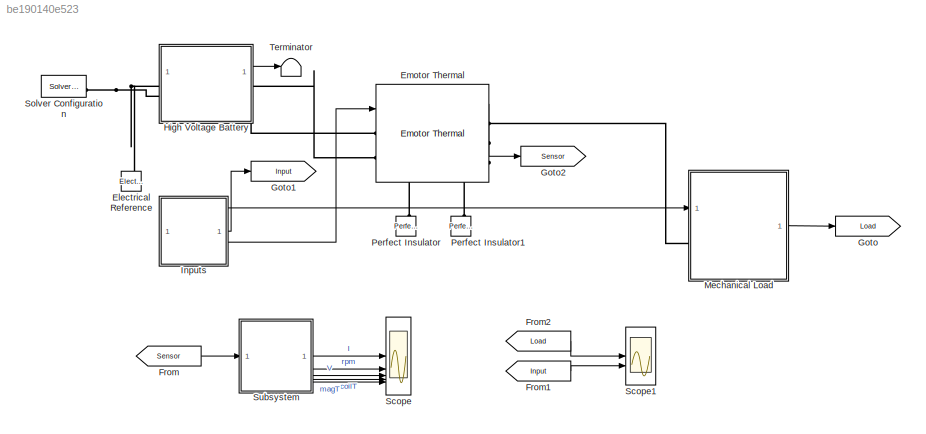
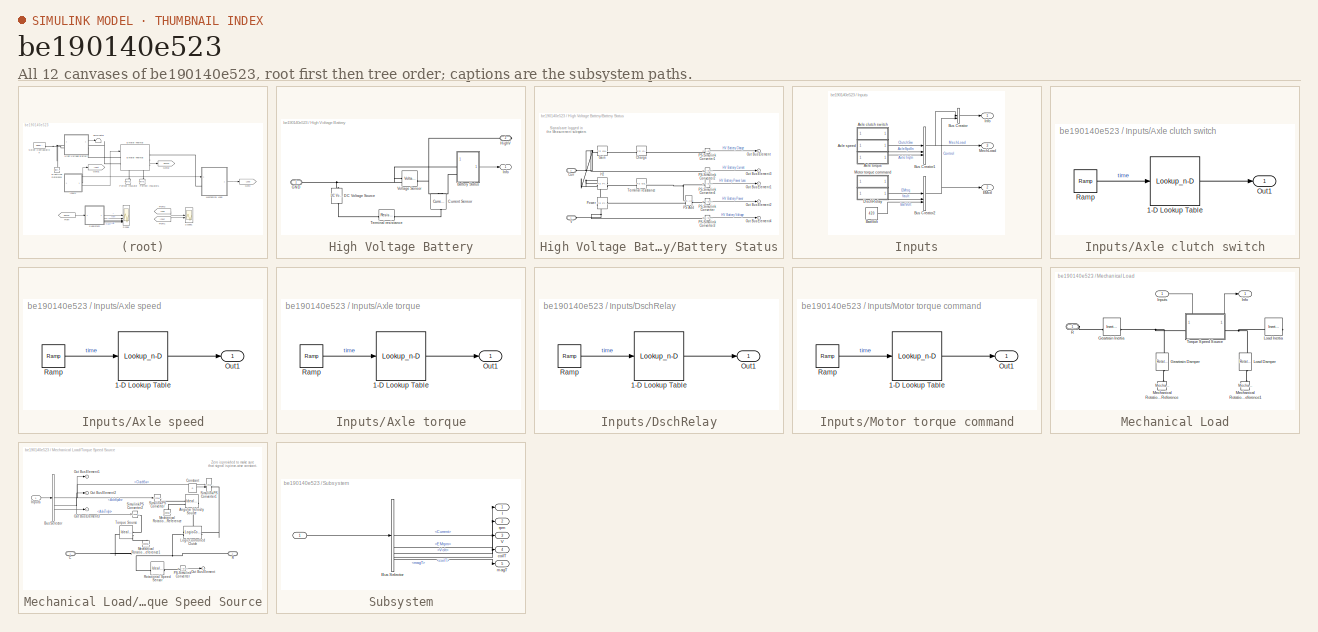
[diagram: thumbnail index - all 12 canvases of the model, root first then tree order]
MODEL slx_be190140e523
KIND model
CONFIG AbsTol = auto
CONFIG EnableMultiTasking = off
CONFIG FixedStep = auto
CONFIG MaxStep = auto
CONFIG MinStep = auto
CONFIG PreLoadFcn = MotorTestHarnessParams;
CONFIG RelTol = 1e-3
CONFIG SampleTimeConstraint = Unconstrained
CONFIG SolverName = VariableStepAuto
CONFIG StartTime = 0.0
CONFIG StopTime = 300
BLOCK [Reference] Electrical Reference  REF=fl_lib/Electrical/Electrical Elements/Electrical Reference
  NameLocation = left
  SourceBlock = fl_lib/Electrical/Electrical Elements/Electrical Reference
  SourceType = Electrical Reference
BLOCK [Reference] Emotor Thermal  REF=EmotorLib/Emotor Thermal
  NameLocation = top
  SourceBlock = EmotorLib/Emotor Thermal
BLOCK [From] From
  GotoTag = Sensor
BLOCK [From] From1
  GotoTag = Input
BLOCK [From] From2
  GotoTag = Load
BLOCK [Goto] Goto
  GotoTag = Load
BLOCK [Goto] Goto1
  GotoTag = Input
BLOCK [Goto] Goto2
  GotoTag = Sensor
BLOCK [SubSystem] High Voltage Battery
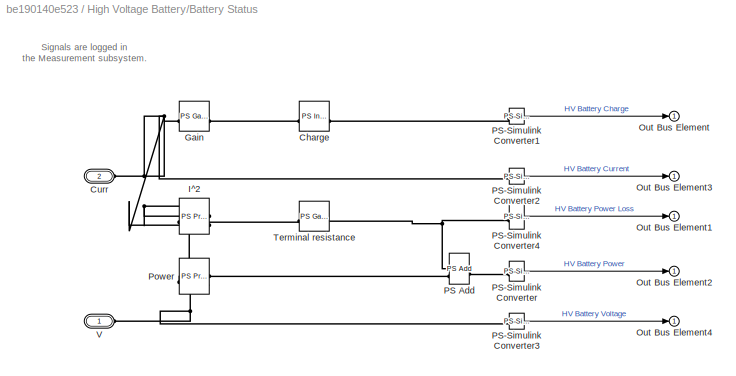
BLOCK [SubSystem] High Voltage Battery/Battery Status
BLOCK [Reference] High Voltage Battery/Battery Status/Charge  REF=fl_lib/Physical Signals/Linear Operators/PS Integrator
  AttributesFormatString = %<x0> [%<x0_unit>]
  SourceBlock = fl_lib/Physical Signals/Linear Operators/PS Integrator
  SourceType = PS Integrator
BLOCK [PMIOPort] High Voltage Battery/Battery Status/Curr
  Port = 2
  Side = Left
BLOCK [Reference] High Voltage Battery/Battery Status/Gain  REF=fl_lib/Physical Signals/Functions/PS Gain
  AttributesFormatString = %<gain>
  SourceBlock = fl_lib/Physical Signals/Functions/PS Gain
  SourceType = PS Gain
BLOCK [Reference] High Voltage Battery/Battery Status/I^2  REF=fl_lib/Physical Signals/Functions/PS Product
  SourceBlock = fl_lib/Physical Signals/Functions/PS Product
  SourceType = PS Product
BLOCK [Outport] High Voltage Battery/Battery Status/Out Bus Element
  AttributesFormatString = %<Unit>
BLOCK [Outport] High Voltage Battery/Battery Status/Out Bus Element1
  AttributesFormatString = %<Unit>
BLOCK [Outport] High Voltage Battery/Battery Status/Out Bus Element2
  AttributesFormatString = %<Unit>
BLOCK [Outport] High Voltage Battery/Battery Status/Out Bus Element3
  AttributesFormatString = %<Unit>
BLOCK [Outport] High Voltage Battery/Battery Status/Out Bus Element4
  AttributesFormatString = %<Unit>
BLOCK [Reference] High Voltage Battery/Battery Status/PS Add  REF=fl_lib/Physical Signals/Functions/PS Add
  SourceBlock = fl_lib/Physical Signals/Functions/PS Add
  SourceType = PS Add
BLOCK [Reference] High Voltage Battery/Battery Status/PS-Simulink Converter  REF=nesl_utility/PS-Simulink
Converter
  AttributesFormatString = %<Unit>
  SourceBlock = nesl_utility/PS-Simulink\nConverter
  SourceType = PS-Simulink\nConverter
BLOCK [Reference] High Voltage Battery/Battery Status/PS-Simulink Converter1  REF=nesl_utility/PS-Simulink
Converter
  AttributesFormatString = %<Unit>
  SourceBlock = nesl_utility/PS-Simulink\nConverter
  SourceType = PS-Simulink\nConverter
BLOCK [Reference] High Voltage Battery/Battery Status/PS-Simulink Converter2  REF=nesl_utility/PS-Simulink
Converter
  AttributesFormatString = %<Unit>
  SourceBlock = nesl_utility/PS-Simulink\nConverter
  SourceType = PS-Simulink\nConverter
BLOCK [Reference] High Voltage Battery/Battery Status/PS-Simulink Converter3  REF=nesl_utility/PS-Simulink
Converter
  AttributesFormatString = %<Unit>
  SourceBlock = nesl_utility/PS-Simulink\nConverter
  SourceType = PS-Simulink\nConverter
BLOCK [Reference] High Voltage Battery/Battery Status/PS-Simulink Converter4  REF=nesl_utility/PS-Simulink
Converter
  AttributesFormatString = %<Unit>
  SourceBlock = nesl_utility/PS-Simulink\nConverter
  SourceType = PS-Simulink\nConverter
BLOCK [Reference] High Voltage Battery/Battery Status/Power  REF=fl_lib/Physical Signals/Functions/PS Product
  SourceBlock = fl_lib/Physical Signals/Functions/PS Product
  SourceType = PS Product
BLOCK [Reference] High Voltage Battery/Battery Status/Terminal resistance  REF=fl_lib/Physical Signals/Functions/PS Gain
  AttributesFormatString = %<gain> [%<gain_unit>]
  SourceBlock = fl_lib/Physical Signals/Functions/PS Gain
  SourceType = PS Gain
BLOCK [PMIOPort] High Voltage Battery/Battery Status/V
  Side = Left
BLOCK [Reference] High Voltage Battery/Current Sensor  REF=fl_lib/Electrical/Electrical Sensors/Current Sensor
  NameLocation = right
  SourceBlock = fl_lib/Electrical/Electrical Sensors/Current Sensor
  SourceType = Current Sensor
BLOCK [Reference] High Voltage Battery/DC Voltage Source  REF=fl_lib/Electrical/Electrical Sources/DC Voltage Source
  AttributesFormatString = %<v0> [%<v0_unit>]
  NameLocation = left
  SourceBlock = fl_lib/Electrical/Electrical Sources/DC Voltage Source
  SourceType = DC Voltage Source
BLOCK [PMIOPort] High Voltage Battery/GND
  Side = Left
BLOCK [PMIOPort] High Voltage Battery/HighV
  Port = 2
  Side = Right
BLOCK [Outport] High Voltage Battery/Info
BLOCK [Reference] High Voltage Battery/Terminal resistance  REF=fl_lib/Electrical/Electrical Elements/Resistor
  AttributesFormatString = %<R> [%<R_unit>]
  NameLocation = top
  SourceBlock = fl_lib/Electrical/Electrical Elements/Resistor
  SourceType = Resistor
BLOCK [Reference] High Voltage Battery/Voltage Sensor  REF=fl_lib/Electrical/Electrical Sensors/Voltage Sensor
  NameLocation = top
  SourceBlock = fl_lib/Electrical/Electrical Sensors/Voltage Sensor
  SourceType = Voltage Sensor
BLOCK [SubSystem] Inputs
BLOCK [SubSystem] Inputs/Axle clutch switch
  NameLocation = left
BLOCK [Lookup_n-D] Inputs/Axle clutch switch/1-D Lookup Table
  BreakpointsForDimension1 = [0  1]
  InputPortMap = u0
  InternalRulePriority = Speed
  InterpMethod = Flat
  NumberOfTableDimensions = 1
  RndMeth = Simplest
  Table = [0  0]
BLOCK [Outport] Inputs/Axle clutch switch/Out1
BLOCK [Reference] Inputs/Axle clutch switch/Ramp  REF=simulink/Sources/Ramp
  AttributesFormatString = Slope: %<slope>\nStart time: %<start>\nInitial output: %<InitialOutput>
  SourceBlock = simulink/Sources/Ramp
  SourceType = Ramp
BLOCK [SubSystem] Inputs/Axle speed
  NameLocation = left
BLOCK [Lookup_n-D] Inputs/Axle speed/1-D Lookup Table
  BreakpointsForDimension1 = [0  1]
  InputPortMap = u0
  InternalRulePriority = Speed
  NumberOfTableDimensions = 1
  RndMeth = Simplest
  Table = [0  0]
BLOCK [Outport] Inputs/Axle speed/Out1
BLOCK [Reference] Inputs/Axle speed/Ramp  REF=simulink/Sources/Ramp
  AttributesFormatString = Slope: %<slope>\nStart time: %<start>\nInitial output: %<InitialOutput>
  SourceBlock = simulink/Sources/Ramp
  SourceType = Ramp
BLOCK [SubSystem] Inputs/Axle torque
  NameLocation = left
BLOCK [Lookup_n-D] Inputs/Axle torque/1-D Lookup Table
  BreakpointsForDimension1 = [0            20          20.1          20.2          20.3          20.4          20.5          20.6          20.7          20.8          20.9            21           300]
  InputPortMap = u0
  InternalRulePriority = Speed
  NumberOfTableDimensions = 1
  RndMeth = Simplest
  Table = [0            0        -0.28        -1.04        -2.16        -3.52           -5        -6.48        -7.84        -8.96        -9.72          -10          -10]
BLOCK [Outport] Inputs/Axle torque/Out1
BLOCK [Reference] Inputs/Axle torque/Ramp  REF=simulink/Sources/Ramp
  AttributesFormatString = Slope: %<slope>\nStart time: %<start>\nInitial output: %<InitialOutput>
  SourceBlock = simulink/Sources/Ramp
  SourceType = Ramp
BLOCK [Constant] Inputs/BattVolt
  Value = 420
BLOCK [BusCreator] Inputs/Bus Creator
  DisplayOption = bar
  InheritFromInputs = on
  Inputs = 2
BLOCK [BusCreator] Inputs/Bus Creator1
  DisplayOption = bar
  InheritFromInputs = on
  Inputs = 3
BLOCK [BusCreator] Inputs/Bus Creator2
  DisplayOption = bar
  InheritFromInputs = on
  Inputs = 3
BLOCK [SubSystem] Inputs/DschRelay
  NameLocation = left
BLOCK [Lookup_n-D] Inputs/DschRelay/1-D Lookup Table
  BreakpointsForDimension1 = [0   50   51   52   53   54   55   56   57   58   59   60  200  201  202  203  204  205  206  207  208  209  210  211  212  213  214  215  216  217  218  219  220  221  222  223  224  225  226  227  228  229  230  231  232  233  234  235  236  237  238  239  240  241  242  243  244  245  246  247  248  249  250  300]
  InputPortMap = u0
  InternalRulePriority = Speed
  NumberOfTableDimensions = 1
  RndMeth = Simplest
  Table = [0               0             -56            -208            -432            -704           -1000           -1296           -1568           -1792           -1944           -2000           -2000        -2011.84        -2046.72        -2103.68        -2181.76           -2280        -2397.44        -2533.12        -2686.08        -2855.36           -3040        -3239.04        -3451.52        -3676....<+611ch>
BLOCK [Outport] Inputs/DschRelay/Out1
BLOCK [Reference] Inputs/DschRelay/Ramp  REF=simulink/Sources/Ramp
  AttributesFormatString = Slope: %<slope>\nStart time: %<start>\nInitial output: %<InitialOutput>
  SourceBlock = simulink/Sources/Ramp
  SourceType = Ramp
BLOCK [Outport] Inputs/EMctl
  Port = 2
BLOCK [Outport] Inputs/Info
BLOCK [Outport] Inputs/MechLoad
  Port = 3
BLOCK [SubSystem] Inputs/Motor torque command
  NameLocation = left
BLOCK [Lookup_n-D] Inputs/Motor torque command/1-D Lookup Table
  BreakpointsForDimension1 = [0            20          20.5            21          21.5            22          22.5            23          23.5            24          24.5            25          25.5            26          26.5            27          27.5            28          28.5            29          29.5            30          30.5            31          31.5            32          32.5            33          33.5      ...<+1059ch>
  InputPortMap = u0
  InternalRulePriority = Speed
  NumberOfTableDimensions = 1
  RndMeth = Simplest
  Table = [0             0     0.1394531      0.553125      1.233984         2.175      3.369141      4.809375      6.488672           8.4      10.53633      12.89062      15.45586        18.225      21.19102      24.34687      27.68555          31.2       34.8832      38.72813      42.72773        46.875      51.16289      55.58438      60.13242          64.8      69.58008      74.46563      79.44961      ...<+1059ch>
BLOCK [Outport] Inputs/Motor torque command/Out1
BLOCK [Reference] Inputs/Motor torque command/Ramp  REF=simulink/Sources/Ramp
  AttributesFormatString = Slope: %<slope>\nStart time: %<start>\nInitial output: %<InitialOutput>
  SourceBlock = simulink/Sources/Ramp
  SourceType = Ramp
BLOCK [SubSystem] Mechanical Load
  PortSchema = {"entries":[{"content":{"sides":[{"content":{"connectorIds":["LConn1","In1"]},"type":"ConnectorPlacement.EquallySpacedRectSide","uuid":"18221845-08ef-4cf2-b090-320221152030"},{"content":{"connectorIds":["Out1"],"side":"RIGHT"},"type":"ConnectorPlacement.EquallySpacedRectSide","uuid":"d5b0548b-74c8-455a-9783-7dc299f3571f"},{"content":{"connectorIds":[],"side":"TOP"},"type":"ConnectorPlacement.Equal...<+249ch>
BLOCK [Reference] Mechanical Load/Geartrain Damper  REF=fl_lib/Mechanical/Rotational Elements/Rotational Damper
  AttributesFormatString = %<D>\n%<D_unit>
  NameLocation = left
  SourceBlock = fl_lib/Mechanical/Rotational Elements/Rotational Damper
  SourceType = Rotational Damper
BLOCK [Reference] Mechanical Load/Geartrain Inertia  REF=fl_lib/Mechanical/Rotational Elements/Inertia
  AttributesFormatString = %<inertia> %<inertia_unit>\nPriority: %<w_priority>
  NameLocation = top
  SourceBlock = fl_lib/Mechanical/Rotational Elements/Inertia
  SourceType = Inertia
BLOCK [Outport] Mechanical Load/Info
BLOCK [Inport] Mechanical Load/Inputs
BLOCK [Reference] Mechanical Load/Load Damper  REF=fl_lib/Mechanical/Rotational Elements/Rotational Damper
  AttributesFormatString = %<D>\n%<D_unit>
  NameLocation = right
  SourceBlock = fl_lib/Mechanical/Rotational Elements/Rotational Damper
  SourceType = Rotational Damper
BLOCK [Reference] Mechanical Load/Load Inertia  REF=fl_lib/Mechanical/Rotational Elements/Inertia
  AttributesFormatString = %<inertia> [%<inertia_unit>]\n%<w> [%<w_unit>]\nPriority: %<w_priority>
  NameLocation = right
  SourceBlock = fl_lib/Mechanical/Rotational Elements/Inertia
  SourceType = Inertia
BLOCK [Reference] Mechanical Load/Mechanical Rotational Reference  REF=fl_lib/Mechanical/Rotational Elements/Mechanical
Rotational Reference
  NameLocation = left
  SourceBlock = fl_lib/Mechanical/Rotational Elements/Mechanical\nRotational Reference
  SourceType = Mechanical\nRotational Reference
BLOCK [Reference] Mechanical Load/Mechanical Rotational Reference1  REF=fl_lib/Mechanical/Rotational Elements/Mechanical
Rotational Reference
  NameLocation = right
  SourceBlock = fl_lib/Mechanical/Rotational Elements/Mechanical\nRotational Reference
  SourceType = Mechanical\nRotational Reference
BLOCK [PMIOPort] Mechanical Load/R
  Side = Left
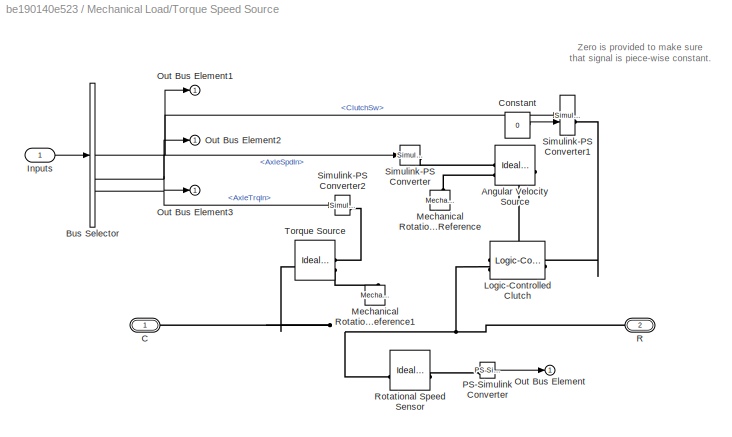
BLOCK [SubSystem] Mechanical Load/Torque Speed Source
  PortSchema = {"entries":[{"content":{"sides":[{"content":{"connectorIds":["LConn1"]},"type":"ConnectorPlacement.EquallySpacedRectSide","uuid":"92a06674-aaa2-495f-b380-fd1e5a218eb3"},{"content":{"connectorIds":["RConn1"],"side":"RIGHT"},"type":"ConnectorPlacement.EquallySpacedRectSide","uuid":"3e9807eb-b215-4ab1-ac02-6574a58f93c0"},{"content":{"connectorIds":["In1","Out1"],"side":"TOP"},"type":"ConnectorPlaceme...<+257ch>
BLOCK [Reference] Mechanical Load/Torque Speed Source/Angular Velocity Source  REF=fl_lib/Mechanical/Mechanical Sources/Ideal Angular
Velocity Source
  SourceBlock = fl_lib/Mechanical/Mechanical Sources/Ideal Angular\nVelocity Source
  SourceType = Ideal Angular\nVelocity Source
BLOCK [BusSelector] Mechanical Load/Torque Speed Source/Bus Selector
  OutputSignals = ClutchSw,AxleSpdIn,AxleTrqIn
BLOCK [PMIOPort] Mechanical Load/Torque Speed Source/C
  Side = Left
BLOCK [Constant] Mechanical Load/Torque Speed Source/Constant
  NameLocation = left
  Value = 0
BLOCK [Inport] Mechanical Load/Torque Speed Source/Inputs
BLOCK [Reference] Mechanical Load/Torque Speed Source/Logic-Controlled Clutch  REF=sdl_lib/Clutches/Logic-Controlled
Clutch
  SourceBlock = sdl_lib/Clutches/Logic-Controlled\nClutch
  SourceType = Logic-Controlled\nClutch
BLOCK [Reference] Mechanical Load/Torque Speed Source/Mechanical Rotational Reference  REF=fl_lib/Mechanical/Rotational Elements/Mechanical
Rotational Reference
  NameLocation = left
  SourceBlock = fl_lib/Mechanical/Rotational Elements/Mechanical\nRotational Reference
  SourceType = Mechanical\nRotational Reference
BLOCK [Reference] Mechanical Load/Torque Speed Source/Mechanical Rotational Reference1  REF=fl_lib/Mechanical/Rotational Elements/Mechanical
Rotational Reference
  SourceBlock = fl_lib/Mechanical/Rotational Elements/Mechanical\nRotational Reference
  SourceType = Mechanical\nRotational Reference
BLOCK [Outport] Mechanical Load/Torque Speed Source/Out Bus Element
BLOCK [Outport] Mechanical Load/Torque Speed Source/Out Bus Element1
  NameLocation = top
BLOCK [Outport] Mechanical Load/Torque Speed Source/Out Bus Element2
  NameLocation = top
BLOCK [Outport] Mechanical Load/Torque Speed Source/Out Bus Element3
  NameLocation = top
BLOCK [Reference] Mechanical Load/Torque Speed Source/PS-Simulink Converter  REF=nesl_utility/PS-Simulink
Converter
  AttributesFormatString = %<Unit>
  SourceBlock = nesl_utility/PS-Simulink\nConverter
  SourceType = PS-Simulink\nConverter
BLOCK [PMIOPort] Mechanical Load/Torque Speed Source/R
  Port = 2
  Side = Right
BLOCK [Reference] Mechanical Load/Torque Speed Source/Rotational Speed Sensor  REF=fl_lib/Mechanical/Mechanical Sensors/Ideal Rotational
Motion Sensor
  SourceBlock = fl_lib/Mechanical/Mechanical Sensors/Ideal Rotational\nMotion Sensor
  SourceType = Ideal Rotational\nMotion Sensor
BLOCK [Reference] Mechanical Load/Torque Speed Source/Simulink-PS Converter  REF=nesl_utility/Simulink-PS
Converter
  AttributesFormatString = %<Unit>
  SourceBlock = nesl_utility/Simulink-PS\nConverter
  SourceType = Simulink-PS\nConverter
BLOCK [Reference] Mechanical Load/Torque Speed Source/Simulink-PS Converter1  REF=nesl_utility/Simulink-PS
Converter
  AttributesFormatString = %<Unit>\nDerivative: %<FilteringAndDerivatives>
  NameLocation = top
  SourceBlock = nesl_utility/Simulink-PS\nConverter
  SourceType = Simulink-PS\nConverter
BLOCK [Reference] Mechanical Load/Torque Speed Source/Simulink-PS Converter2  REF=nesl_utility/Simulink-PS
Converter
  AttributesFormatString = %<Unit>
  NameLocation = top
  SourceBlock = nesl_utility/Simulink-PS\nConverter
  SourceType = Simulink-PS\nConverter
BLOCK [Reference] Mechanical Load/Torque Speed Source/Torque Source  REF=fl_lib/Mechanical/Mechanical Sources/Ideal Torque Source
  SourceBlock = fl_lib/Mechanical/Mechanical Sources/Ideal Torque Source
  SourceType = Ideal Torque Source
BLOCK [Reference] Perfect Insulator  REF=fl_lib/Thermal/Thermal Elements/Perfect Insulator
  NameLocation = right
  SourceBlock = fl_lib/Thermal/Thermal Elements/Perfect Insulator
  SourceType = Perfect Insulator
BLOCK [Reference] Perfect Insulator1  REF=fl_lib/Thermal/Thermal Elements/Perfect Insulator
  NameLocation = right
  SourceBlock = fl_lib/Thermal/Thermal Elements/Perfect Insulator
  SourceType = Perfect Insulator
BLOCK [Scope] Scope
  Floating = off
  NumInputPorts = 5
  ScopeSpecificationString = Simulink.scopes.TimeScopeBlockCfg('CurrentConfiguration', extmgr.ConfigurationSet(extmgr.Configuration('Core','General UI',true),extmgr.Configuration('Core','Source UI',true),extmgr.Configuration('Sources','WiredSimulink',true),extmgr.Configuration('Visuals','Time Domain',true,'SerializedDisplays',{struct('MinYLimReal','-1.00000','MaxYLimReal','1.00000','YLabelReal','','MinYLimMag','0.00000','MaxY...<+4753ch>
BLOCK [Scope] Scope1
  Floating = off
  NumInputPorts = 2
  ScopeSpecificationString = Simulink.scopes.TimeScopeBlockCfg('CurrentConfiguration', extmgr.ConfigurationSet(extmgr.Configuration('Core','General UI',true),extmgr.Configuration('Core','Source UI',true),extmgr.Configuration('Sources','WiredSimulink',true,'DataLoggingVariableName','ScopeData1'),extmgr.Configuration('Visuals','Time Domain',true,'SerializedDisplays',{struct('MinYLimReal','-5029.7519','MaxYLimReal','4716.7822','...<+2339ch>
BLOCK [Reference] Solver Configuration  REF=nesl_utility/Solver
Configuration
  AttributesFormatString = Local solver %<UseLocalSolver>
  NameLocation = top
  SourceBlock = nesl_utility/Solver\nConfiguration
  SourceType = Solver\nConfiguration
BLOCK [SubSystem] Subsystem
BLOCK [Inport] Subsystem/ 
BLOCK [BusSelector] Subsystem/Bus Selector
  OutputSignals = Current,EMrpm,Volt,coilT,magT
BLOCK [Outport] Subsystem/I
BLOCK [Outport] Subsystem/V
  Port = 3
BLOCK [Outport] Subsystem/coilT
  Port = 4
BLOCK [Outport] Subsystem/magT
  Port = 5
BLOCK [Outport] Subsystem/rpm
  Port = 2
BLOCK [Terminator] Terminator
ANNOTATION High Voltage Battery/Battery Status: Signals are logged in the Measurement subsystem.
ANNOTATION Mechanical Load/Torque Speed Source: Zero is provided to make sure that signal is piece-wise constant.
LINE Emotor Thermal:1 -> Goto2:1
LINE From1:1 -> Scope1:2
LINE From2:1 -> Scope1:1
LINE From:1 -> Subsystem:1
LINE High Voltage Battery/Battery Status/PS-Simulink Converter1:1 -> High Voltage Battery/Battery Status/Out Bus Element:1
LINE High Voltage Battery/Battery Status/PS-Simulink Converter2:1 -> High Voltage Battery/Battery Status/Out Bus Element3:1
LINE High Voltage Battery/Battery Status/PS-Simulink Converter3:1 -> High Voltage Battery/Battery Status/Out Bus Element4:1
LINE High Voltage Battery/Battery Status/PS-Simulink Converter4:1 -> High Voltage Battery/Battery Status/Out Bus Element1:1
LINE High Voltage Battery/Battery Status/PS-Simulink Converter:1 -> High Voltage Battery/Battery Status/Out Bus Element2:1
LINE High Voltage Battery/Battery Status:1 -> High Voltage Battery/Info:1
LINE High Voltage Battery:1 -> Terminator:1
LINE Inputs/Axle clutch switch/1-D Lookup Table:1 -> Inputs/Axle clutch switch/Out1:1
LINE Inputs/Axle clutch switch/Ramp:1 -> Inputs/Axle clutch switch/1-D Lookup Table:1
LINE Inputs/Axle clutch switch:1 -> Inputs/Bus Creator1:1
LINE Inputs/Axle speed/1-D Lookup Table:1 -> Inputs/Axle speed/Out1:1
LINE Inputs/Axle speed/Ramp:1 -> Inputs/Axle speed/1-D Lookup Table:1
LINE Inputs/Axle speed:1 -> Inputs/Bus Creator1:2
LINE Inputs/Axle torque/1-D Lookup Table:1 -> Inputs/Axle torque/Out1:1
LINE Inputs/Axle torque/Ramp:1 -> Inputs/Axle torque/1-D Lookup Table:1
LINE Inputs/Axle torque:1 -> Inputs/Bus Creator1:3
LINE Inputs/BattVolt:1 -> Inputs/Bus Creator2:3
NET Inputs/Bus Creator1:1 -> Inputs/Bus Creator:1, Inputs/MechLoad:1
NET Inputs/Bus Creator2:1 -> Inputs/Bus Creator:2, Inputs/EMctl:1
LINE Inputs/Bus Creator:1 -> Inputs/Info:1
LINE Inputs/DschRelay/1-D Lookup Table:1 -> Inputs/DschRelay/Out1:1
LINE Inputs/DschRelay/Ramp:1 -> Inputs/DschRelay/1-D Lookup Table:1
LINE Inputs/DschRelay:1 -> Inputs/Bus Creator2:2
LINE Inputs/Motor torque command/1-D Lookup Table:1 -> Inputs/Motor torque command/Out1:1
LINE Inputs/Motor torque command/Ramp:1 -> Inputs/Motor torque command/1-D Lookup Table:1
LINE Inputs/Motor torque command:1 -> Inputs/Bus Creator2:1
LINE Inputs:1 -> Goto1:1
LINE Inputs:2 -> Emotor Thermal:1
LINE Inputs:3 -> Mechanical Load:1
LINE Mechanical Load/Inputs:1 -> Mechanical Load/Torque Speed Source:1
NET Mechanical Load/Torque Speed Source/Bus Selector:1 -> Mechanical Load/Torque Speed Source/Out Bus Element1:1, Mechanical Load/Torque Speed Source/Simulink-PS Converter1:1
NET Mechanical Load/Torque Speed Source/Bus Selector:2 -> Mechanical Load/Torque Speed Source/Out Bus Element2:1, Mechanical Load/Torque Speed Source/Simulink-PS Converter:1
NET Mechanical Load/Torque Speed Source/Bus Selector:3 -> Mechanical Load/Torque Speed Source/Out Bus Element3:1, Mechanical Load/Torque Speed Source/Simulink-PS Converter2:1
LINE Mechanical Load/Torque Speed Source/Constant:1 -> Mechanical Load/Torque Speed Source/Simulink-PS Converter1:2
LINE Mechanical Load/Torque Speed Source/Inputs:1 -> Mechanical Load/Torque Speed Source/Bus Selector:1
LINE Mechanical Load/Torque Speed Source/PS-Simulink Converter:1 -> Mechanical Load/Torque Speed Source/Out Bus Element:1
LINE Mechanical Load/Torque Speed Source:1 -> Mechanical Load/Info:1
LINE Mechanical Load:1 -> Goto:1
LINE Subsystem/ :1 -> Subsystem/Bus Selector:1
LINE Subsystem/Bus Selector:1 -> Subsystem/I:1
LINE Subsystem/Bus Selector:2 -> Subsystem/rpm:1
LINE Subsystem/Bus Selector:3 -> Subsystem/V:1
LINE Subsystem/Bus Selector:4 -> Subsystem/coilT:1
LINE Subsystem/Bus Selector:5 -> Subsystem/magT:1
LINE Subsystem:1 -> Scope:1
LINE Subsystem:2 -> Scope:2
LINE Subsystem:3 -> Scope:3
LINE Subsystem:4 -> Scope:4
LINE Subsystem:5 -> Scope:5
PNET net1: Electrical Reference:LConn1 -- Emotor Thermal:LConn2 -- High Voltage Battery:LConn1 -- Solver Configuration:RConn1
PLINE Emotor Thermal:LConn1 -- High Voltage Battery:RConn1
PLINE Emotor Thermal:RConn1 -- Mechanical Load:LConn1
PLINE Emotor Thermal:RConn2 -- Perfect Insulator:LConn1
PLINE Emotor Thermal:RConn3 -- Perfect Insulator1:LConn1
PLINE High Voltage Battery/Battery Status/Charge:LConn1 -- High Voltage Battery/Battery Status/Gain:RConn1
PLINE High Voltage Battery/Battery Status/Charge:RConn1 -- High Voltage Battery/Battery Status/PS-Simulink Converter1:LConn1
PNET net2: High Voltage Battery/Battery Status/Curr:RConn1 -- High Voltage Battery/Battery Status/Gain:LConn1 -- High Voltage Battery/Battery Status/I^2:LConn1 -- High Voltage Battery/Battery Status/I^2:LConn2 -- High Voltage Battery/Battery Status/PS-Simulink Converter2:LConn1 -- High Voltage Battery/Battery Status/Power:LConn2
PLINE High Voltage Battery/Battery Status/I^2:RConn1 -- High Voltage Battery/Battery Status/Terminal resistance:LConn1
PNET net3: High Voltage Battery/Battery Status/PS Add:LConn1 -- High Voltage Battery/Battery Status/PS-Simulink Converter4:LConn1 -- High Voltage Battery/Battery Status/Terminal resistance:RConn1
PLINE High Voltage Battery/Battery Status/PS Add:LConn2 -- High Voltage Battery/Battery Status/Power:RConn1
PLINE High Voltage Battery/Battery Status/PS Add:RConn1 -- High Voltage Battery/Battery Status/PS-Simulink Converter:LConn1
PNET net4: High Voltage Battery/Battery Status/PS-Simulink Converter3:LConn1 -- High Voltage Battery/Battery Status/Power:LConn1 -- High Voltage Battery/Battery Status/V:RConn1
PLINE High Voltage Battery/Battery Status:LConn1 -- High Voltage Battery/Voltage Sensor:RConn1
PLINE High Voltage Battery/Battery Status:LConn2 -- High Voltage Battery/Current Sensor:RConn1
PLINE High Voltage Battery/Current Sensor:LConn1 -- High Voltage Battery/Terminal resistance:RConn1
PNET net5: High Voltage Battery/Current Sensor:RConn2 -- High Voltage Battery/HighV:RConn1 -- High Voltage Battery/Voltage Sensor:LConn1
PLINE High Voltage Battery/DC Voltage Source:LConn1 -- High Voltage Battery/Terminal resistance:LConn1
PNET net6: High Voltage Battery/DC Voltage Source:RConn1 -- High Voltage Battery/GND:RConn1 -- High Voltage Battery/Voltage Sensor:RConn2
PNET net7: Mechanical Load/Geartrain Damper:LConn1 -- Mechanical Load/Geartrain Inertia:LConn1 -- Mechanical Load/Torque Speed Source:LConn1
PLINE Mechanical Load/Geartrain Damper:RConn1 -- Mechanical Load/Mechanical Rotational Reference:LConn1
PLINE Mechanical Load/Geartrain Inertia:RConn1 -- Mechanical Load/R:RConn1
PNET net8: Mechanical Load/Load Damper:LConn1 -- Mechanical Load/Load Inertia:LConn1 -- Mechanical Load/Torque Speed Source:RConn1
PLINE Mechanical Load/Load Damper:RConn1 -- Mechanical Load/Mechanical Rotational Reference1:LConn1
PLINE Mechanical Load/Torque Speed Source/Angular Velocity Source:LConn1 -- Mechanical Load/Torque Speed Source/Logic-Controlled Clutch:LConn2
PLINE Mechanical Load/Torque Speed Source/Angular Velocity Source:RConn1 -- Mechanical Load/Torque Speed Source/Simulink-PS Converter:RConn1
PLINE Mechanical Load/Torque Speed Source/Angular Velocity Source:RConn2 -- Mechanical Load/Torque Speed Source/Mechanical Rotational Reference:LConn1
PNET net9: Mechanical Load/Torque Speed Source/C:RConn1 -- Mechanical Load/Torque Speed Source/Logic-Controlled Clutch:RConn1 -- Mechanical Load/Torque Speed Source/R:RConn1 -- Mechanical Load/Torque Speed Source/Rotational Speed Sensor:LConn1 -- Mechanical Load/Torque Speed Source/Torque Source:LConn1
PLINE Mechanical Load/Torque Speed Source/Logic-Controlled Clutch:LConn1 -- Mechanical Load/Torque Speed Source/Simulink-PS Converter1:RConn1
PLINE Mechanical Load/Torque Speed Source/Mechanical Rotational Reference1:LConn1 -- Mechanical Load/Torque Speed Source/Torque Source:RConn2
PLINE Mechanical Load/Torque Speed Source/PS-Simulink Converter:LConn1 -- Mechanical Load/Torque Speed Source/Rotational Speed Sensor:RConn1
PLINE Mechanical Load/Torque Speed Source/Simulink-PS Converter2:RConn1 -- Mechanical Load/Torque Speed Source/Torque Source:RConn1
note: NET lines group one-source signal fan-out (src -> all destinations, sorted); 1:1 wires keep LINE; PNET lines group multi-terminal physical nets as a canonical sorted terminal list (undirected conserving connections); 2-terminal nets keep the pairwise PLINE form
